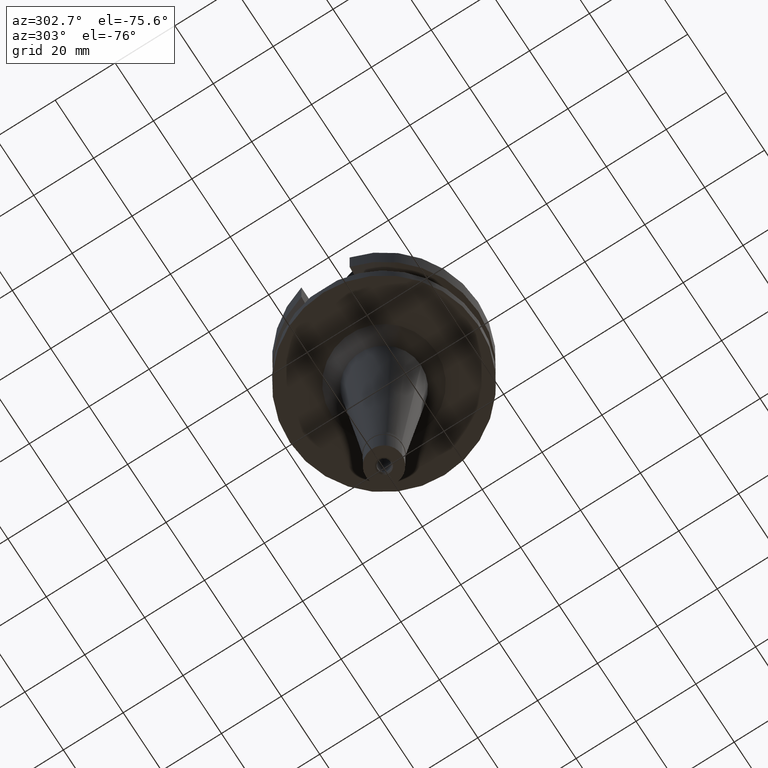
[diagram: clean part render]
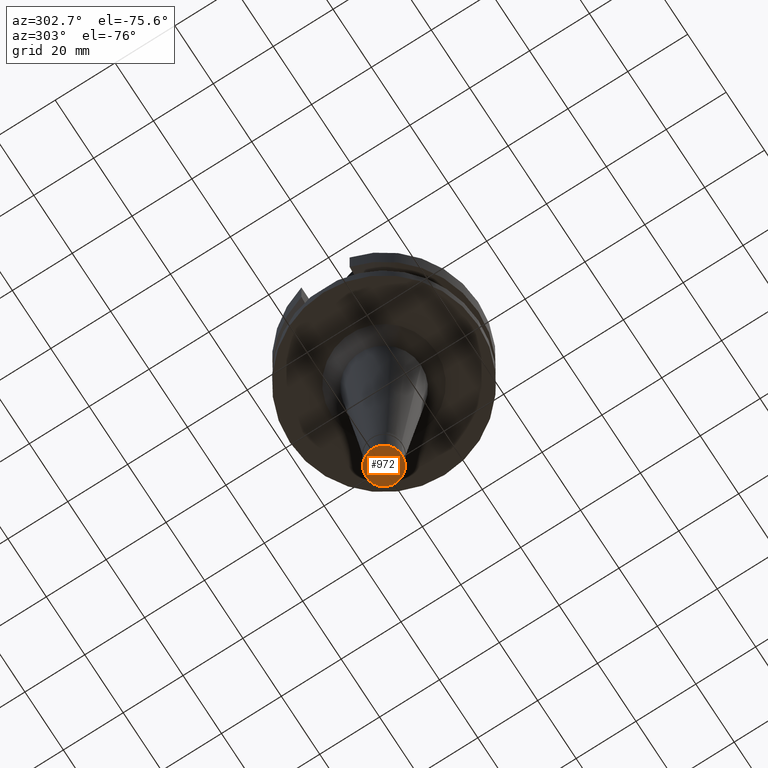
[diagram: same view with one face highlighted and labeled with its STEP entity id]
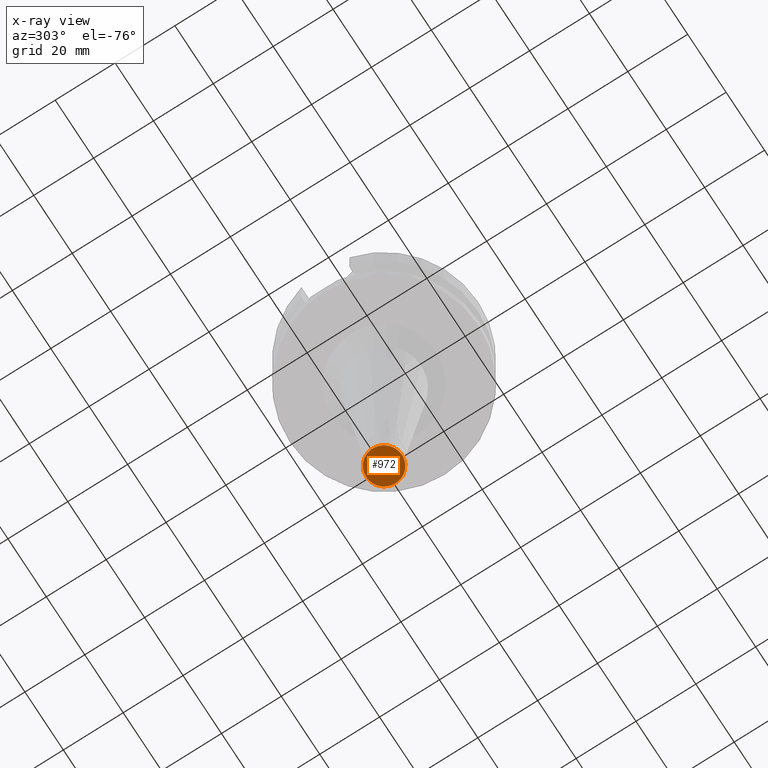
[diagram: x-ray of the same camera — body ghosted, the highlighted face saturated]
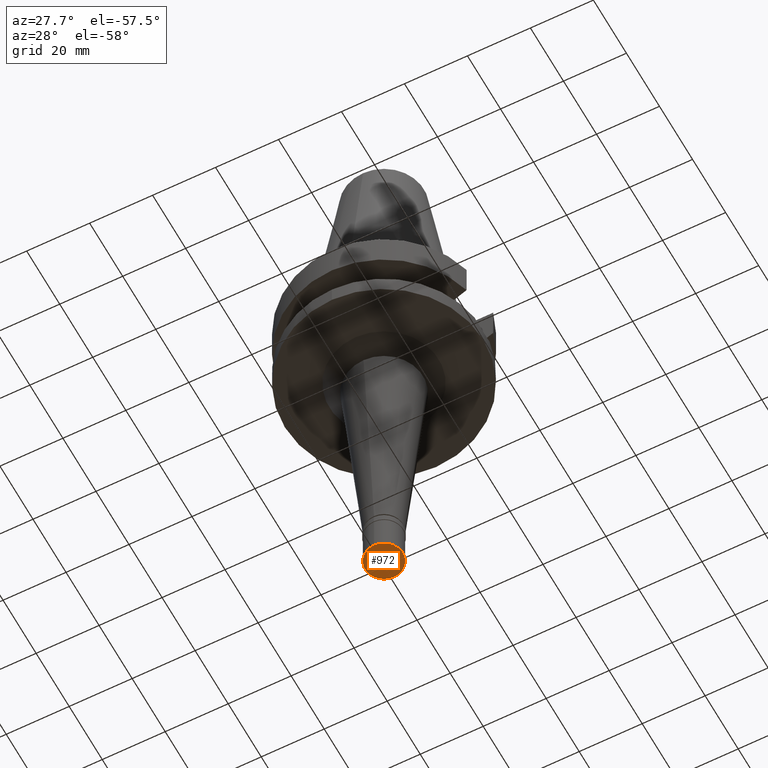
[diagram: same view with one face highlighted and labeled with its STEP entity id]
A machine part, auxiliary view. The second image highlights one B-rep face of the part: STEP entity #972.
The next image is the same camera in x-ray: the body ghosted, the highlighted face saturated — about 0% of this face is hidden behind the body in this view.
A second angle (auxiliary view) of the same face is appended — the face is thin or edge-on in the first view.
In plain terms, the highlighted planar face has unit normal (0, 0, 1).
Its self-contained STEP definition (entity closure, byte-faithful):
#11 = DIRECTION ( 'NONE',  ( 0.0000000000000000000, -1.000000000000000000, 0.0000000000000000000 ) ) ;
#51 = AXIS2_PLACEMENT_3D ( 'NONE', #1855, #934, #1131 ) ;
#77 = CARTESIAN_POINT ( 'NONE',  ( 0.0000000000000000000, 0.0000000000000000000, -14.50000000000000000 ) ) ;
#175 = CARTESIAN_POINT ( 'NONE',  ( 0.0000000000000000000, -6.000000000000000000, -14.50000000000000000 ) ) ;
#225 = FACE_BOUND ( 'NONE', #966, .T. ) ;
#356 = DIRECTION ( 'NONE',  ( 0.0000000000000000000, 0.0000000000000000000, 1.000000000000000000 ) ) ;
#428 = FACE_OUTER_BOUND ( 'NONE', #2314, .T. ) ;
#549 = DIRECTION ( 'NONE',  ( 0.0000000000000000000, -1.000000000000000000, 0.0000000000000000000 ) ) ;
#619 = CARTESIAN_POINT ( 'NONE',  ( 0.0000000000000000000, 6.000000000000000000, -14.50000000000000000 ) ) ;
#667 = CARTESIAN_POINT ( 'NONE',  ( 0.0000000000000000000, 0.0000000000000000000, -14.50000000000000000 ) ) ;
#694 = AXIS2_PLACEMENT_3D ( 'NONE', #1973, #1047, #1984 ) ;
#717 = AXIS2_PLACEMENT_3D ( 'NONE', #667, #1837, #11 ) ;
#821 = ORIENTED_EDGE ( 'NONE', *, *, #1065, .F. ) ;
#828 = CIRCLE ( 'NONE', #2477, 6.000000000000000000 ) ;
#832 = CARTESIAN_POINT ( 'NONE',  ( 0.0000000000000000000, -2.550000000000000266, -14.50000000000000000 ) ) ;
#905 = PLANE ( 'NONE',  #51 ) ;
#934 = DIRECTION ( 'NONE',  ( 0.0000000000000000000, 0.0000000000000000000, 1.000000000000000000 ) ) ;
#966 = EDGE_LOOP ( 'NONE', ( #1845, #821 ) ) ;
#972 = ADVANCED_FACE ( 'NONE', ( #428, #225 ), #905, .F. ) ;
#975 = AXIS2_PLACEMENT_3D ( 'NONE', #1287, #1558, #2001 ) ;
#1047 = DIRECTION ( 'NONE',  ( 0.0000000000000000000, 0.0000000000000000000, 1.000000000000000000 ) ) ;
#1065 = EDGE_CURVE ( 'NONE', #1311, #1726, #1774, .T. ) ;
#1131 = DIRECTION ( 'NONE',  ( 1.000000000000000000, 0.0000000000000000000, 0.0000000000000000000 ) ) ;
#1287 = CARTESIAN_POINT ( 'NONE',  ( 0.0000000000000000000, 0.0000000000000000000, -14.50000000000000000 ) ) ;
#1311 = VERTEX_POINT ( 'NONE', #832 ) ;
#1558 = DIRECTION ( 'NONE',  ( 0.0000000000000000000, 0.0000000000000000000, -1.000000000000000000 ) ) ;
#1594 = ORIENTED_EDGE ( 'NONE', *, *, #2047, .F. ) ;
#1612 = CIRCLE ( 'NONE', #694, 6.000000000000000000 ) ;
#1726 = VERTEX_POINT ( 'NONE', #2502 ) ;
#1774 = CIRCLE ( 'NONE', #717, 2.550000000000000266 ) ;
#1837 = DIRECTION ( 'NONE',  ( 0.0000000000000000000, 0.0000000000000000000, -1.000000000000000000 ) ) ;
#1845 = ORIENTED_EDGE ( 'NONE', *, *, #2810, .F. ) ;
#1855 = CARTESIAN_POINT ( 'NONE',  ( 0.0000000000000000000, 0.0000000000000000000, -14.50000000000000000 ) ) ;
#1973 = CARTESIAN_POINT ( 'NONE',  ( 0.0000000000000000000, 0.0000000000000000000, -14.50000000000000000 ) ) ;
#1984 = DIRECTION ( 'NONE',  ( 0.0000000000000000000, 1.000000000000000000, 0.0000000000000000000 ) ) ;
#2001 = DIRECTION ( 'NONE',  ( 0.0000000000000000000, 1.000000000000000000, 0.0000000000000000000 ) ) ;
#2047 = EDGE_CURVE ( 'NONE', #2848, #2075, #828, .T. ) ;
#2075 = VERTEX_POINT ( 'NONE', #619 ) ;
#2314 = EDGE_LOOP ( 'NONE', ( #2739, #1594 ) ) ;
#2477 = AXIS2_PLACEMENT_3D ( 'NONE', #77, #356, #549 ) ;
#2502 = CARTESIAN_POINT ( 'NONE',  ( 0.0000000000000000000, 2.550000000000000266, -14.50000000000000000 ) ) ;
#2739 = ORIENTED_EDGE ( 'NONE', *, *, #2827, .F. ) ;
#2810 = EDGE_CURVE ( 'NONE', #1726, #1311, #2912, .T. ) ;
#2827 = EDGE_CURVE ( 'NONE', #2075, #2848, #1612, .T. ) ;
#2848 = VERTEX_POINT ( 'NONE', #175 ) ;
#2912 = CIRCLE ( 'NONE', #975, 2.550000000000000266 ) ;